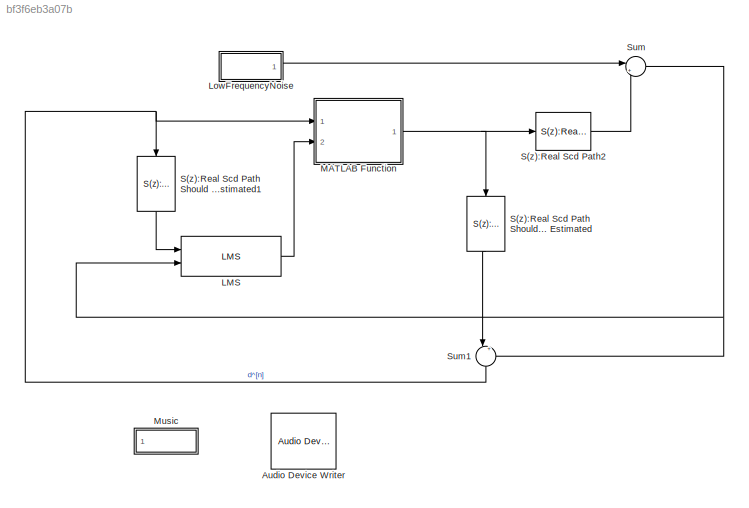
MODEL slx_bf3f6eb3a07b
KIND model
CONFIG AbsTol = auto
CONFIG EnableMultiTasking = on
CONFIG FixedStep = auto
CONFIG MaxStep = auto
CONFIG MinStep = auto
CONFIG RelTol = 1e-3
CONFIG SampleTimeConstraint = Unconstrained
CONFIG Solver = VariableStepAuto
CONFIG SolverName = VariableStepAuto
CONFIG StartTime = 0.0
CONFIG StopTime = inf
BLOCK [Reference] Audio Device Writer  REF=dspsnks4/Audio Device
Writer
  Ports = [1]
  SourceBlock = dspsnks4/Audio Device\nWriter
  SourceType = Audio Device Writer
BLOCK [Reference] LMS  REF=Lib/LMS
  Ports = [2, 1]
  SourceBlock = Lib/LMS
  SourceType = SubSystem
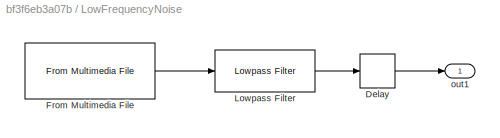
BLOCK [SubSystem] LowFrequencyNoise
  Ports = [0, 1]
  RequestExecContextInheritance = off
  Variant = off
BLOCK [Delay] LowFrequencyNoise/Delay
  DelayLength = 1
  InitialCondition = 0
  InputPortMap = u0
  Ports = [1, 1]
BLOCK [Reference] LowFrequencyNoise/From Multimedia File  REF=dspvision/From Multimedia File
  Ports = [0, 1]
  SourceBlock = dspvision/From Multimedia File
  SourceType = From Multimedia File
BLOCK [Reference] LowFrequencyNoise/Lowpass Filter  REF=dspfdesign/Lowpass Filter
  Ports = [1, 1]
  SourceBlock = dspfdesign/Lowpass Filter
  SourceType = dsp.LowpassFilter
BLOCK [Outport] LowFrequencyNoise/out1 
  IconDisplay = Port number
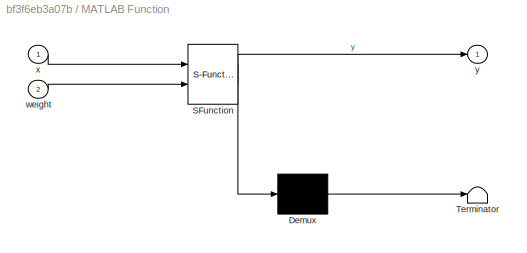
BLOCK [SubSystem] MATLAB Function
  Description = W
  ErrorFcn = Stateflow.Translate.translate
  PermitHierarchicalResolution = ExplicitOnly
  Ports = [2, 1]
  RequestExecContextInheritance = off
  SFBlockType = MATLAB Function
  TreatAsAtomicUnit = on
  Variant = off
BLOCK [Demux] MATLAB Function/ Demux 
  Outputs = 1
  Ports = [1, 1]
BLOCK [S-Function] MATLAB Function/ SFunction 
  EnableBusSupport = on
  FunctionName = sf_sfun
  PortCounts = [2 2]
  Ports = [2, 2]
  SFcnIsStateOwnerBlock = off
  SFunctionDeploymentMode = off
  Tag = Stateflow S-Function MainScheme 2
BLOCK [Terminator] MATLAB Function/ Terminator 
BLOCK [Inport] MATLAB Function/weight
  IconDisplay = Port number
  Port = 2
BLOCK [Inport] MATLAB Function/x
  IconDisplay = Port number
BLOCK [Outport] MATLAB Function/y
  IconDisplay = Port number
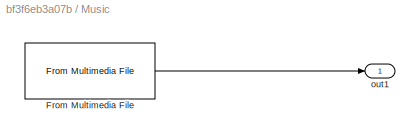
BLOCK [SubSystem] Music
  Ports = [0, 1]
  RequestExecContextInheritance = off
  Variant = off
BLOCK [Reference] Music/From Multimedia File  REF=dspvision/From Multimedia File
  Ports = [0, 1]
  SourceBlock = dspvision/From Multimedia File
  SourceType = From Multimedia File
BLOCK [Outport] Music/out1 
  IconDisplay = Port number
BLOCK [Reference] S(z):Real Scd Path Should be Estimated  REF=Lib/S(z):Real Scd Path
  Ports = [1, 1]
  SourceBlock = Lib/S(z):Real Scd Path
BLOCK [Reference] S(z):Real Scd Path Should be Estimated1  REF=Lib/S(z):Real Scd Path
  Ports = [1, 1]
  SourceBlock = Lib/S(z):Real Scd Path
BLOCK [Reference] S(z):Real Scd Path2  REF=Lib/S(z):Real Scd Path
  Ports = [1, 1]
  SourceBlock = Lib/S(z):Real Scd Path
BLOCK [Sum] Sum
  IconShape = round
  InputSameDT = off
  Inputs = |+-
  OutDataTypeStr = Inherit: Inherit via internal rule
  Ports = [2, 1]
  SaturateOnIntegerOverflow = off
BLOCK [Sum] Sum1
  IconShape = round
  InputSameDT = off
  Inputs = |++
  OutDataTypeStr = Inherit: Inherit via internal rule
  Ports = [2, 1]
  SaturateOnIntegerOverflow = off
LINE LMS:1 -> MATLAB Function:2
LINE LowFrequencyNoise/Delay:1 -> LowFrequencyNoise/out1 :1
LINE LowFrequencyNoise/From Multimedia File:1 -> LowFrequencyNoise/Lowpass Filter:1
LINE LowFrequencyNoise/Lowpass Filter:1 -> LowFrequencyNoise/Delay:1
LINE LowFrequencyNoise:1 -> Sum:1
NET MATLAB Function:1 -> S(z):Real Scd Path Should be Estimated:1, S(z):Real Scd Path2:1
LINE Music/From Multimedia File:1 -> Music/out1 :1
LINE S(z):Real Scd Path Should be Estimated1:1 -> LMS:1
LINE S(z):Real Scd Path Should be Estimated:1 -> Sum1:1
LINE S(z):Real Scd Path2:1 -> Sum:2
NET Sum1:1 -> MATLAB Function:1, S(z):Real Scd Path Should be Estimated1:1
NET Sum:1 -> LMS:2, Sum1:2
note: NET lines group one-source signal fan-out (src -> all destinations, sorted); 1:1 wires keep LINE
CHART MATLAB Function states=1 transitions=1
  STATE_LABEL 'eML_blk_kernel()'
  STATE_LABEL 'SCRIPT:\nfunction y = W_FIR_Filter(x,weight)\n% where are you man???\ny = x;\nend\n'
